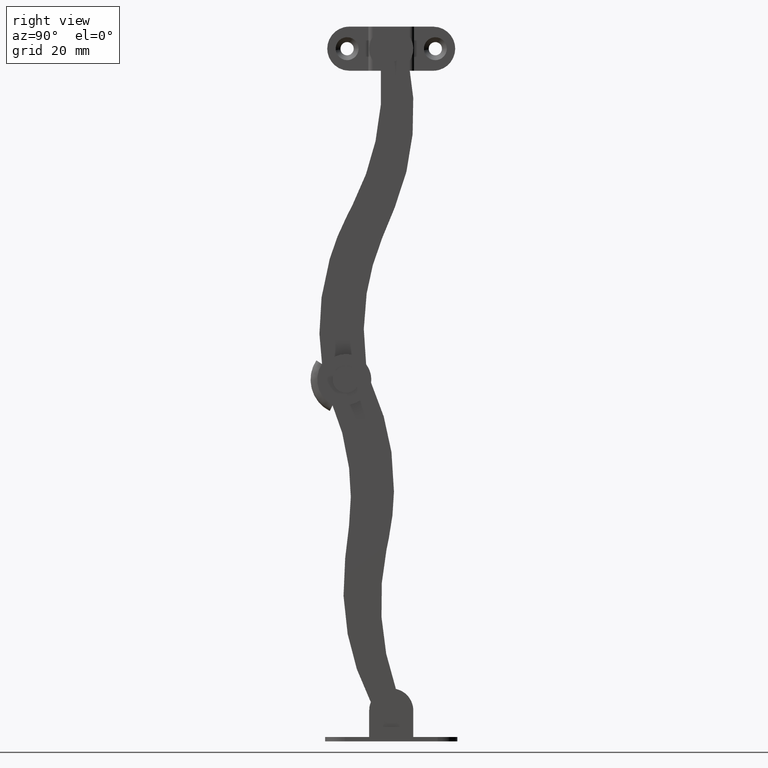
[diagram: clean part render]
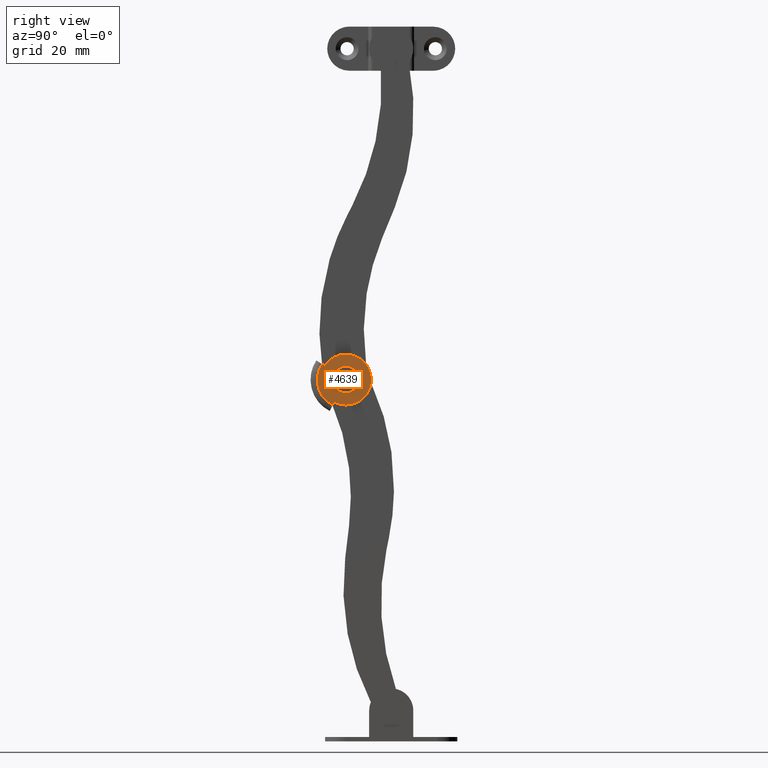
[diagram: same view with one face highlighted and labeled with its STEP entity id]
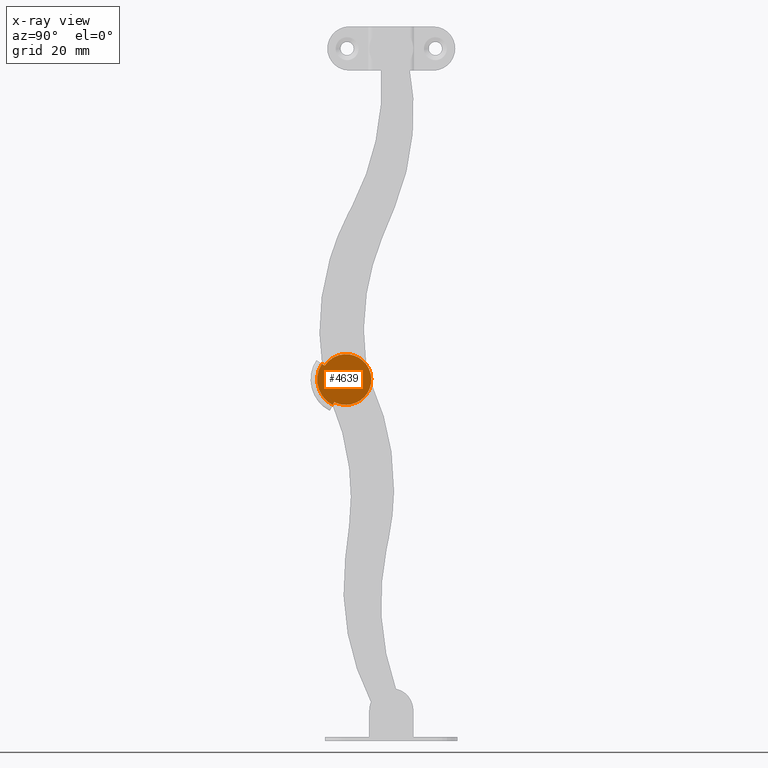
[diagram: x-ray of the same camera — body ghosted, the highlighted face saturated]
A machine part, right view. The second image highlights one B-rep face of the part: STEP entity #4639.
The next image is the same camera in x-ray: the body ghosted, the highlighted face saturated — about 0% of this face is hidden behind the body in this view.
In plain terms, the highlighted face is a freeform B-spline surface patch.
Its self-contained STEP definition (entity closure, byte-faithful):
#4213=CARTESIAN_POINT('',(8.500000000000000,-10.270723439328240,1.499983292947609));
#4214=VERTEX_POINT('',#4213);
#4215=CARTESIAN_POINT('',(8.500000000000000,-8.775345190191580,0.117674369120644));
#4216=VERTEX_POINT('',#4215);
#4217=CARTESIAN_POINT('',(8.500000000000000,-10.270723439328240,1.499983292947609));
#4218=CARTESIAN_POINT('',(8.500000000000000,-8.884137702054836,1.499985548448486));
#4219=CARTESIAN_POINT('',(8.500000000000000,-8.775345190191580,0.117674369120644));
#4227=(BOUNDED_CURVE()B_SPLINE_CURVE(2,(#4217,#4218,#4219),.UNSPECIFIED.,.F.,.U.)B_SPLINE_CURVE_WITH_KNOTS((3,3),(0.0,0.236331300606629),.UNSPECIFIED.)CURVE()GEOMETRIC_REPRESENTATION_ITEM()RATIONAL_B_SPLINE_CURVE((1.0,0.723120658635819,0.969723356117268))REPRESENTATION_ITEM(''));
#4228=EDGE_CURVE('',#4214,#4216,#4227,.T.);
#4230=CARTESIAN_POINT('',(8.500000000000000,-11.766096808490699,-0.117707783221458));
#4231=VERTEX_POINT('',#4230);
#4232=CARTESIAN_POINT('',(8.500000000000000,-11.766096808490698,-0.117707783221458));
#4233=CARTESIAN_POINT('',(8.500000000000000,-11.770720903471803,-0.058954307663467));
#4234=CARTESIAN_POINT('',(8.500000000000000,-11.770720999339151,-0.000019147037509));
#4235=CARTESIAN_POINT('',(8.500000000000002,-11.770723439326257,1.499980852960507));
#4236=CARTESIAN_POINT('',(8.500000000000000,-10.270723439328240,1.499983292947609));
#4244=(BOUNDED_CURVE()B_SPLINE_CURVE(2,(#4232,#4233,#4234,#4235,#4236),.UNSPECIFIED.,.F.,.U.)B_SPLINE_CURVE_WITH_KNOTS((3,2,3),(0.736331300606629,0.750000000000000,1.0),.UNSPECIFIED.)CURVE()GEOMETRIC_REPRESENTATION_ITEM()RATIONAL_B_SPLINE_CURVE((0.969723356117268,0.983986122550729,1.0,0.707106781186548,1.0))REPRESENTATION_ITEM(''));
#4245=EDGE_CURVE('',#4231,#4214,#4244,.T.);
#4312=CARTESIAN_POINT('',(8.500000000000000,-10.270718559354041,-1.500016707048422));
#4313=VERTEX_POINT('',#4312);
#4314=CARTESIAN_POINT('',(8.500000000000000,-8.775345190191580,0.117674369120644));
#4315=CARTESIAN_POINT('',(8.499999999999998,-8.770721095210478,0.058920893562653));
#4316=CARTESIAN_POINT('',(8.500000000000000,-8.770720999343125,-0.000014267063304));
#4317=CARTESIAN_POINT('',(8.500000000000002,-8.770718559356022,-1.500014267061320));
#4318=CARTESIAN_POINT('',(8.500000000000000,-10.270718559354041,-1.500016707048422));
#4326=(BOUNDED_CURVE()B_SPLINE_CURVE(2,(#4314,#4315,#4316,#4317,#4318),.UNSPECIFIED.,.F.,.U.)B_SPLINE_CURVE_WITH_KNOTS((3,2,3),(0.236331300606629,0.250000000000000,0.500000000000000),.UNSPECIFIED.)CURVE()GEOMETRIC_REPRESENTATION_ITEM()RATIONAL_B_SPLINE_CURVE((0.969723356117268,0.983986122550729,1.0,0.707106781186548,1.0))REPRESENTATION_ITEM(''));
#4327=EDGE_CURVE('',#4216,#4313,#4326,.T.);
#4361=CARTESIAN_POINT('',(8.500000000000000,-10.270718559354041,-1.500016707048422));
#4362=CARTESIAN_POINT('',(8.500000000000002,-11.657304296627441,-1.500018962549299));
#4363=CARTESIAN_POINT('',(8.500000000000000,-11.766096808490699,-0.117707783221458));
#4371=(BOUNDED_CURVE()B_SPLINE_CURVE(2,(#4361,#4362,#4363),.UNSPECIFIED.,.F.,.U.)B_SPLINE_CURVE_WITH_KNOTS((3,3),(0.500000000000000,0.736331300606629),.UNSPECIFIED.)CURVE()GEOMETRIC_REPRESENTATION_ITEM()RATIONAL_B_SPLINE_CURVE((1.0,0.723120658635819,0.969723356117268))REPRESENTATION_ITEM(''));
#4372=EDGE_CURVE('',#4313,#4231,#4371,.T.);
#4396=CARTESIAN_POINT('',(8.500000000000000,-13.247765193276360,-5.778183186770129));
#4397=VERTEX_POINT('',#4396);
#4426=CARTESIAN_POINT('',(8.500000000000000,-15.716977337055550,3.547981588313595));
#4427=VERTEX_POINT('',#4426);
#4428=CARTESIAN_POINT('',(8.500000000000000,-13.247765193276360,-5.778183186770129));
#4429=CARTESIAN_POINT('',(8.500000000000000,-15.815053246031660,-4.455457367353251));
#4430=CARTESIAN_POINT('',(8.500000000000000,-16.554218060263921,-1.663646679542721));
#4431=CARTESIAN_POINT('',(8.500000000000000,-17.293382874496182,1.128164008267810));
#4432=CARTESIAN_POINT('',(8.500000000000000,-15.716977337055541,3.547981588313584));
#4440=(BOUNDED_CURVE()B_SPLINE_CURVE(2,(#4428,#4429,#4430,#4431,#4432),.UNSPECIFIED.,.F.,.U.)B_SPLINE_CURVE_WITH_KNOTS((3,2,3),(0.0,0.500000000000000,1.0),.UNSPECIFIED.)CURVE()GEOMETRIC_REPRESENTATION_ITEM()RATIONAL_B_SPLINE_CURVE((1.0,0.913857675299951,1.0,0.913857675299951,1.0))REPRESENTATION_ITEM(''));
#4441=EDGE_CURVE('',#4397,#4427,#4440,.T.);
#4594=CARTESIAN_POINT('',(8.500000000000000,-3.915839051806814,-6.353266692690198));
#4595=CARTESIAN_POINT('',(8.500000000000000,-17.380913846057709,-6.353288595762752));
#4596=CARTESIAN_POINT('',(8.500000000000000,-3.915859651300105,6.310423170477916));
#4597=CARTESIAN_POINT('',(8.500000000000000,-17.380934445550999,6.310401267405362));
#4598=B_SPLINE_SURFACE_WITH_KNOTS('',1,1,((#4594,#4596),(#4595,#4597)),.UNSPECIFIED.,.F.,.F.,.U.,(2,2),(2,2),(0.0,13.465074794268711),(0.0,12.663689863184871),.UNSPECIFIED.);
#4599=CARTESIAN_POINT('',(8.500000000000000,-12.899100946047399,-5.114126488405560));
#4600=VERTEX_POINT('',#4599);
#4601=CARTESIAN_POINT('',(8.500000000000000,-12.899100946047399,-5.114126488405560));
#4602=CARTESIAN_POINT('',(8.500000000000000,-13.247765193276360,-5.778183186770129));
#4603=QUASI_UNIFORM_CURVE('',1,(#4601,#4602),.UNSPECIFIED.,.F.,.U.);
#4604=EDGE_CURVE('',#4600,#4397,#4603,.T.);
#4605=ORIENTED_EDGE('',*,*,#4604,.F.);
#4606=CARTESIAN_POINT('',(8.500000000000000,-15.088562480545500,3.138598188406895));
#4607=VERTEX_POINT('',#4606);
#4608=CARTESIAN_POINT('',(8.500000000000000,-15.088562480545511,3.138598188406899));
#4609=CARTESIAN_POINT('',(8.500000000000000,-12.055550231572001,7.794337332210470));
#4610=CARTESIAN_POINT('',(8.500000000000000,-7.298771260173651,4.922382580681370));
#4611=CARTESIAN_POINT('',(8.500000000000000,-2.541992288775298,2.050427829152269));
#4612=CARTESIAN_POINT('',(8.500000000000000,-5.249527055263797,-2.801821728096842));
#4613=CARTESIAN_POINT('',(8.500000000000000,-7.957061821752290,-7.654071285345951));
#4614=CARTESIAN_POINT('',(8.500000000000000,-12.899100946047390,-5.114126488405558));
#4622=(BOUNDED_CURVE()B_SPLINE_CURVE(2,(#4608,#4609,#4610,#4611,#4612,#4613,#4614),.UNSPECIFIED.,.F.,.U.)B_SPLINE_CURVE_WITH_KNOTS((3,2,2,3),(0.0,0.333333333333333,0.666666666666667,1.0),.UNSPECIFIED.)CURVE()GEOMETRIC_REPRESENTATION_ITEM()RATIONAL_B_SPLINE_CURVE((1.0,0.719100814199370,1.0,0.719100814199370,1.0,0.719100814199370,1.0))REPRESENTATION_ITEM(''));
#4623=EDGE_CURVE('',#4607,#4600,#4622,.T.);
#4624=ORIENTED_EDGE('',*,*,#4623,.F.);
#4625=CARTESIAN_POINT('',(8.500000000000000,-15.716977337055550,3.547981588313595));
#4626=CARTESIAN_POINT('',(8.500000000000000,-15.088562480545500,3.138598188406895));
#4627=QUASI_UNIFORM_CURVE('',1,(#4625,#4626),.UNSPECIFIED.,.F.,.U.);
#4628=EDGE_CURVE('',#4427,#4607,#4627,.T.);
#4629=ORIENTED_EDGE('',*,*,#4628,.F.);
#4630=ORIENTED_EDGE('',*,*,#4441,.F.);
#4631=EDGE_LOOP('',(#4605,#4624,#4629,#4630));
#4632=FACE_OUTER_BOUND('',#4631,.T.);
#4633=ORIENTED_EDGE('',*,*,#4372,.T.);
#4634=ORIENTED_EDGE('',*,*,#4245,.T.);
#4635=ORIENTED_EDGE('',*,*,#4228,.T.);
#4636=ORIENTED_EDGE('',*,*,#4327,.T.);
#4637=EDGE_LOOP('',(#4633,#4634,#4635,#4636));
#4638=FACE_BOUND('',#4637,.T.);
#4639=ADVANCED_FACE('',(#4632,#4638),#4598,.F.);